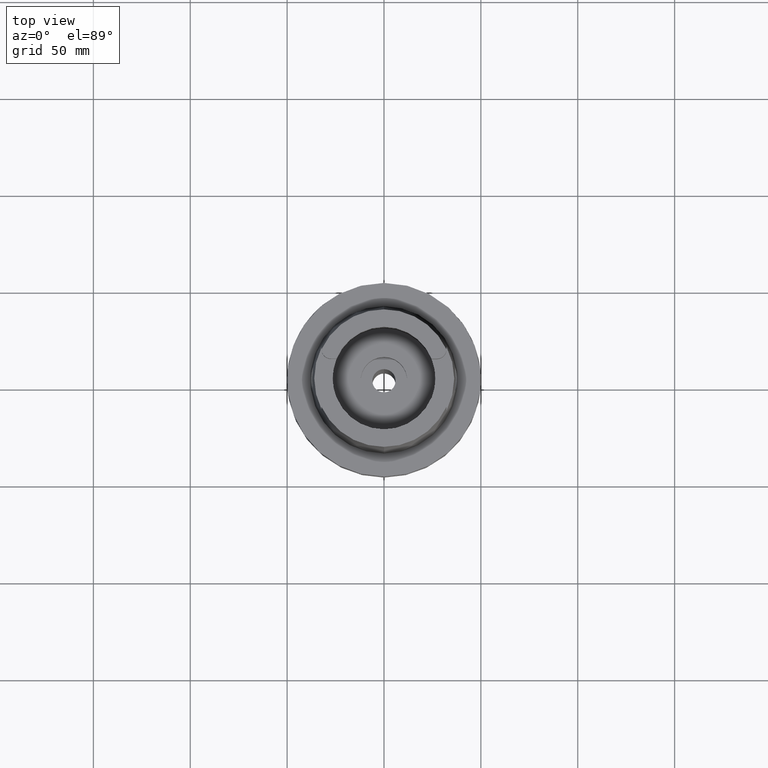
[diagram: clean part render]
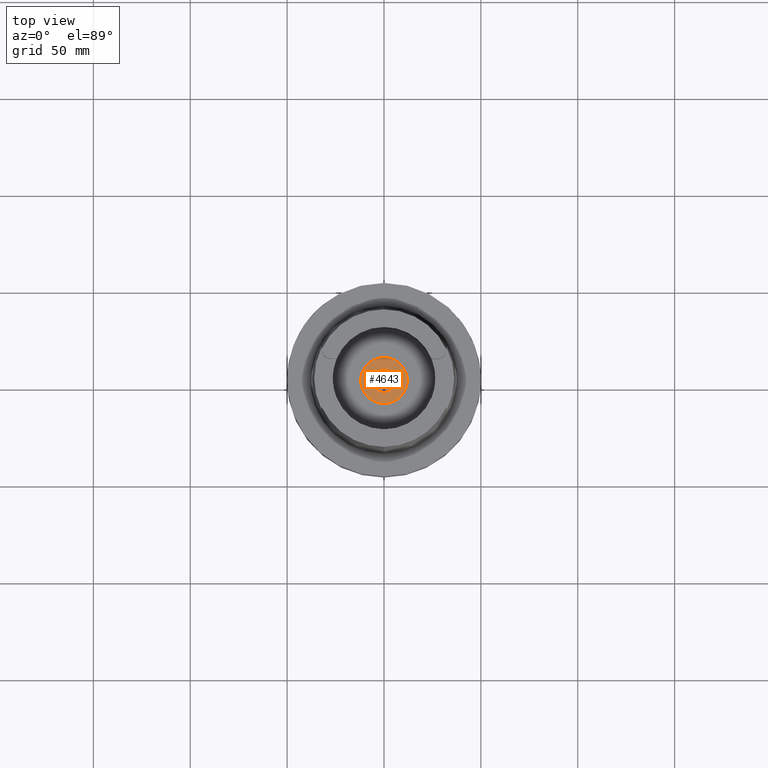
[diagram: same view with one face highlighted and labeled with its STEP entity id]
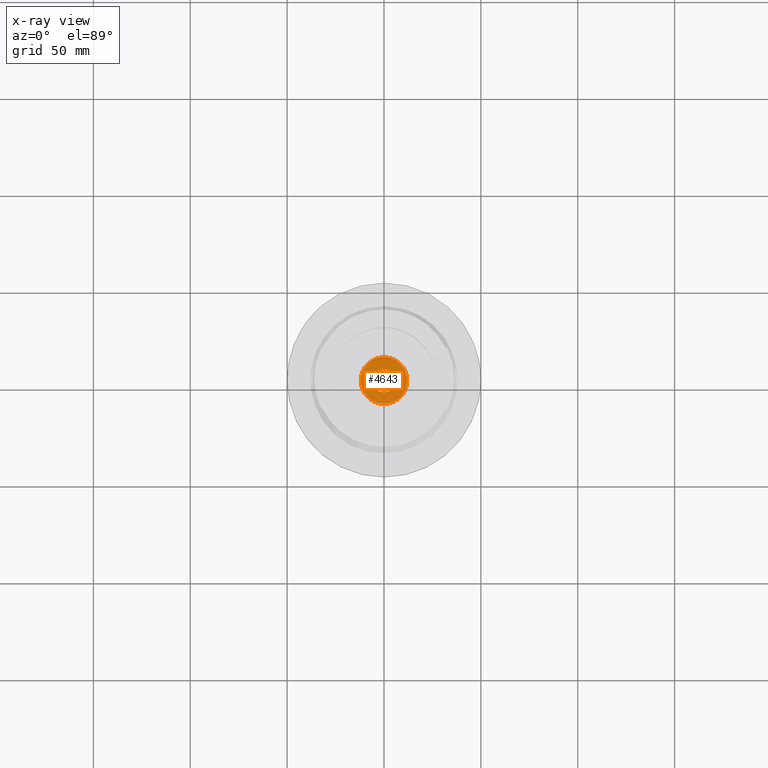
[diagram: x-ray of the same camera — body ghosted, the highlighted face saturated]
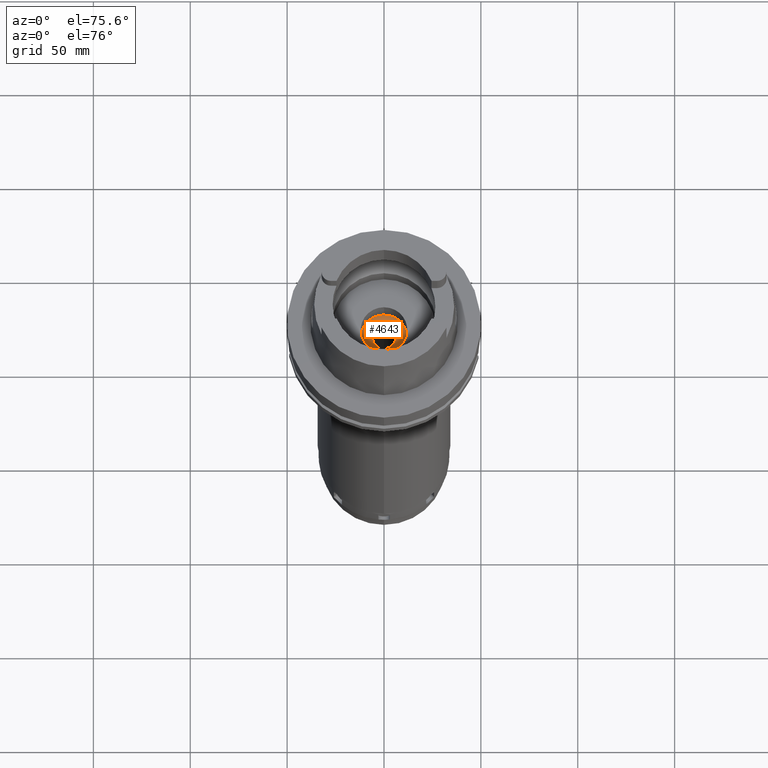
[diagram: same view with one face highlighted and labeled with its STEP entity id]
A machine part, top view. The second image highlights one B-rep face of the part: STEP entity #4643.
The next image is the same camera in x-ray: the body ghosted, the highlighted face saturated — about 0% of this face is hidden behind the body in this view.
A second angle (auxiliary view) of the same face is appended — the face is thin or edge-on in the first view.
In plain terms, the highlighted planar face has unit normal (0, 0, 1).
Its self-contained STEP definition (entity closure, byte-faithful):
#847=CARTESIAN_POINT('',(0.E0,0.E0,-2.845E1));
#848=DIRECTION('',(0.E0,0.E0,-1.E0));
#849=DIRECTION('',(0.E0,-1.E0,0.E0));
#850=AXIS2_PLACEMENT_3D('',#847,#848,#849);
#855=CARTESIAN_POINT('',(0.E0,0.E0,-2.845E1));
#856=DIRECTION('',(0.E0,0.E0,-1.E0));
#857=DIRECTION('',(0.E0,1.E0,0.E0));
#858=AXIS2_PLACEMENT_3D('',#855,#856,#857);
#863=CARTESIAN_POINT('',(0.E0,0.E0,-2.845E1));
#864=DIRECTION('',(0.E0,0.E0,1.E0));
#865=DIRECTION('',(0.E0,-1.E0,0.E0));
#866=AXIS2_PLACEMENT_3D('',#863,#864,#865);
#871=CARTESIAN_POINT('',(0.E0,0.E0,-2.845E1));
#872=DIRECTION('',(0.E0,0.E0,1.E0));
#873=DIRECTION('',(0.E0,1.E0,0.E0));
#874=AXIS2_PLACEMENT_3D('',#871,#872,#873);
#3663=CARTESIAN_POINT('',(0.E0,1.2E1,-2.845E1));
#3664=VERTEX_POINT('',#3663);
#3665=CARTESIAN_POINT('',(0.E0,-1.2E1,-2.845E1));
#3666=VERTEX_POINT('',#3665);
#3667=CARTESIAN_POINT('',(0.E0,-6.E0,-2.845E1));
#3668=CARTESIAN_POINT('',(0.E0,6.E0,-2.845E1));
#3669=VERTEX_POINT('',#3667);
#3670=VERTEX_POINT('',#3668);
#4628=CARTESIAN_POINT('',(0.E0,0.E0,-2.845E1));
#4629=DIRECTION('',(0.E0,0.E0,1.E0));
#4630=DIRECTION('',(0.E0,1.E0,0.E0));
#4631=AXIS2_PLACEMENT_3D('',#4628,#4629,#4630);
#4632=PLANE('',#4631);
#4633=ORIENTED_EDGE('',*,*,#4621,.T.);
#4634=ORIENTED_EDGE('',*,*,#4610,.T.);
#4635=EDGE_LOOP('',(#4633,#4634));
#4636=FACE_OUTER_BOUND('',#4635,.F.);
#4638=ORIENTED_EDGE('',*,*,#4637,.T.);
#4640=ORIENTED_EDGE('',*,*,#4639,.T.);
#4641=EDGE_LOOP('',(#4638,#4640));
#4642=FACE_BOUND('',#4641,.F.);
#851=CIRCLE('',#850,1.2E1);
#859=CIRCLE('',#858,1.2E1);
#867=CIRCLE('',#866,6.E0);
#875=CIRCLE('',#874,6.E0);
#4610=EDGE_CURVE('',#3664,#3666,#859,.T.);
#4621=EDGE_CURVE('',#3666,#3664,#851,.T.);
#4637=EDGE_CURVE('',#3669,#3670,#867,.T.);
#4639=EDGE_CURVE('',#3670,#3669,#875,.T.);
#4643=ADVANCED_FACE('',(#4636,#4642),#4632,.T.);